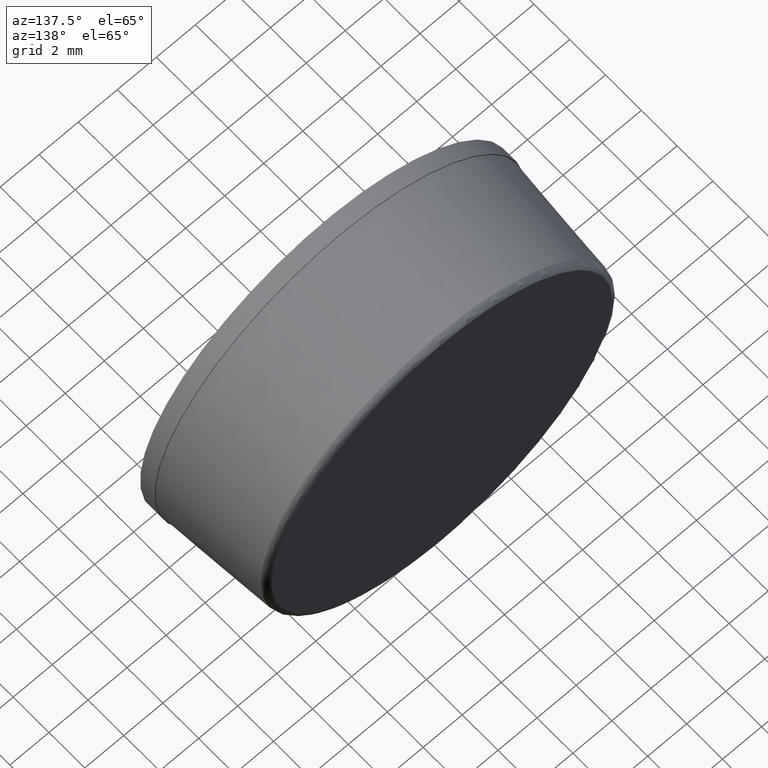
[diagram: clean part render]
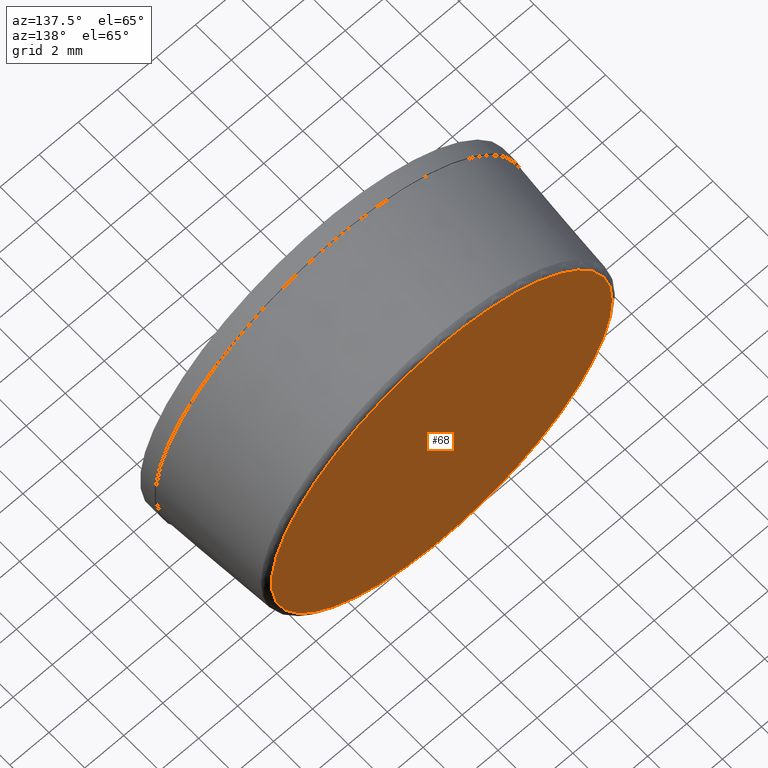
[diagram: same view with one face highlighted and labeled with its STEP entity id]
A machine part, auxiliary view. The second image highlights one B-rep face of the part: STEP entity #68.
In plain terms, the highlighted planar face has unit normal (0, 1, 0).
Its self-contained STEP definition (entity closure, byte-faithful):
#16=PLANE('',#79);
#26=FACE_OUTER_BOUND('',#34,.T.);
#34=EDGE_LOOP('',(#59));
#41=CIRCLE('',#76,8.72275075969664);
#46=VERTEX_POINT('',#113);
#51=EDGE_CURVE('',#46,#46,#41,.T.);
#59=ORIENTED_EDGE('',*,*,#51,.F.);
#68=ADVANCED_FACE('',(#26),#16,.T.);
#76=AXIS2_PLACEMENT_3D('',#114,#91,#92);
#79=AXIS2_PLACEMENT_3D('',#118,#97,#98);
#91=DIRECTION('center_axis',(0.,-1.,0.));
#92=DIRECTION('ref_axis',(1.,0.,0.));
#97=DIRECTION('center_axis',(0.,1.,0.));
#98=DIRECTION('ref_axis',(0.,0.,1.));
#113=CARTESIAN_POINT('',(-8.72275075969664,6.5,-1.06822887976226E-15));
#114=CARTESIAN_POINT('Origin',(0.,6.5,0.));
#118=CARTESIAN_POINT('Origin',(0.,6.5,0.));